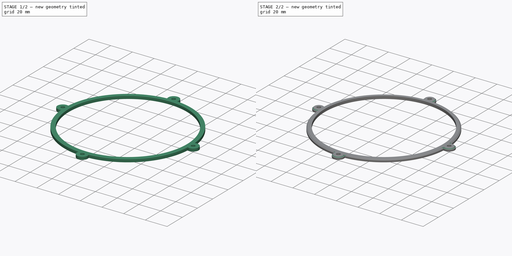
[diagram: build sequence overview — one tinted view per stage of 2, left to right]
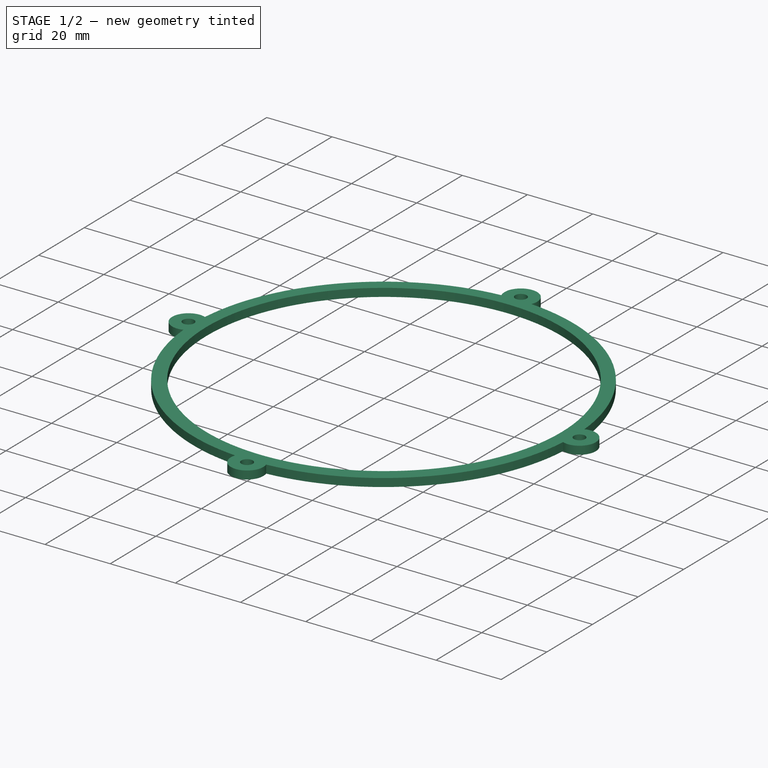
[diagram: stage 1 of 2 — iso view after this stage's code; geometry added in this stage tinted green]
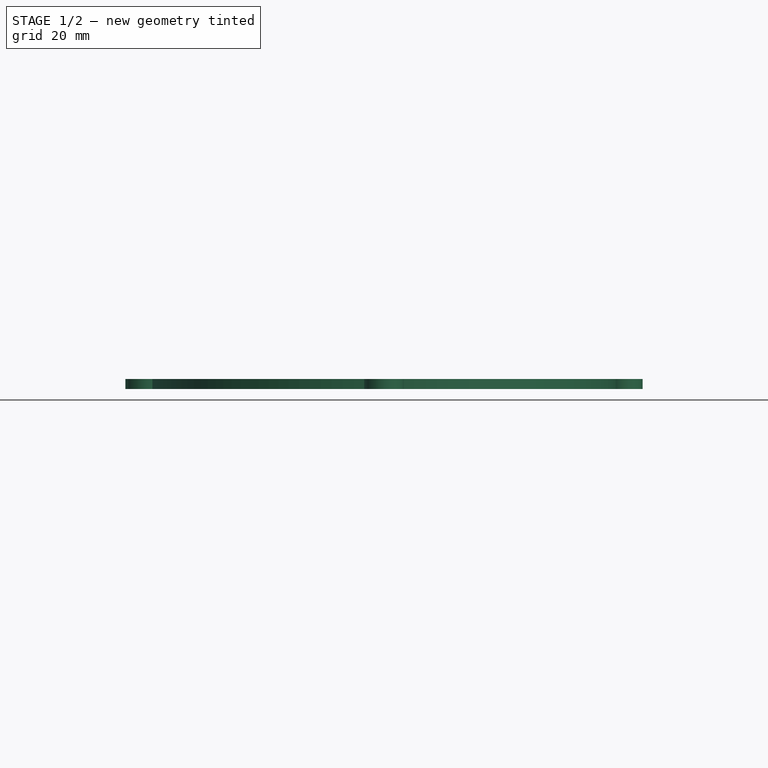
[diagram: stage 1 of 2 — front view after this stage's code; geometry added in this stage tinted green]
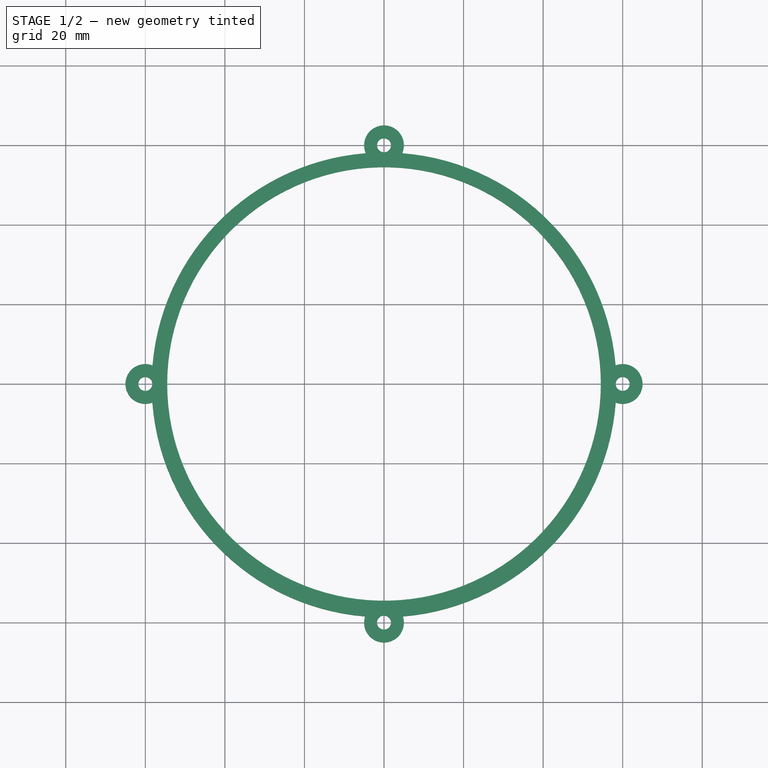
[diagram: stage 1 of 2 — top view after this stage's code; geometry added in this stage tinted green]
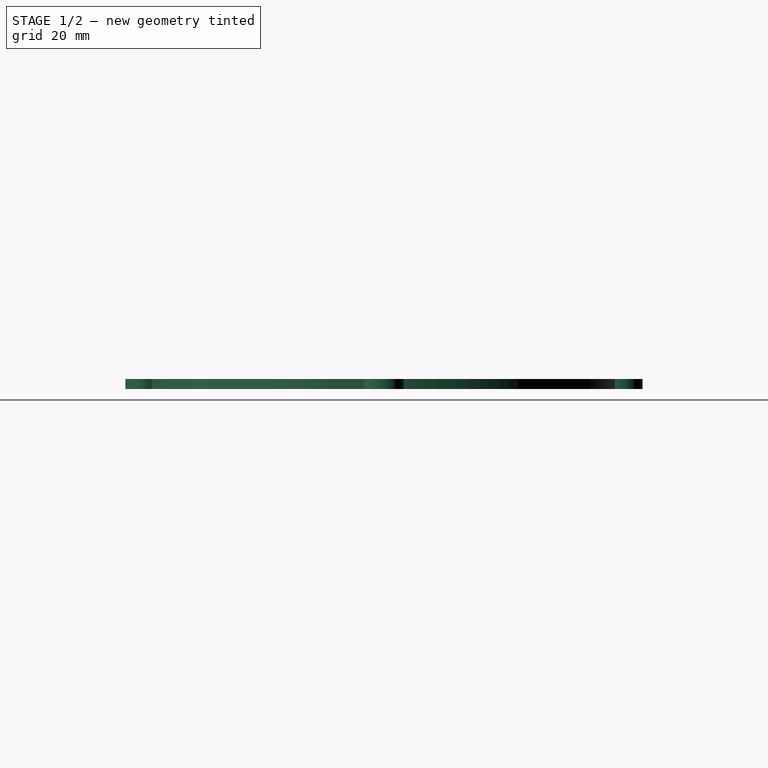
[diagram: stage 1 of 2 — right view after this stage's code; geometry added in this stage tinted green]
FCSTD DOCUMENT  (FreeCAD 0.19R24276 (Git))
Label: Filter_ring
License: All rights reserved
LicenseURL: http://en.wikipedia.org/wiki/All_rights_reserved
objects: Sketcher::SketchObject×1, PartDesign::Pad×1, PartDesign::Chamfer×1, PartDesign::Body×1
note: 6 computed .brp shape members not serialized (recipe doc carries the construction recipe); baked Part::Feature solids carry a one-line shape summary decoded from their .brp

FEATURE [Sketcher::SketchObject] Sketch
  FullyConstrained = false
  MapMode = 5
  Support = -> [XY_Plane]
  sketch-geometry (18):
    g0: Circle CenterX=0 CenterY=0 CenterZ=0 NormalX=0 NormalY=0 NormalZ=1 AngleXU=0 Radius=54.5
    g1: LineSegment StartX=0 StartY=0 StartZ=0 EndX=0 EndY=60 EndZ=0
    g2: ArcOfCircle CenterX=0 CenterY=60 CenterZ=0 NormalX=0 NormalY=0 NormalZ=1 AngleXU=0 Radius=5 StartAngle=5.87256 EndAngle=9.83573
    g3: Circle CenterX=0 CenterY=60 CenterZ=0 NormalX=0 NormalY=0 NormalZ=1 AngleXU=0 Radius=0
    g4: Circle CenterX=0 CenterY=60 CenterZ=0 NormalX=0 NormalY=0 NormalZ=1 AngleXU=0 Radius=1.75
    g5: LineSegment StartX=0 StartY=0 StartZ=0 EndX=0 EndY=-60 EndZ=0
    g6: ArcOfCircle CenterX=0 CenterY=-60 CenterZ=0 NormalX=0 NormalY=0 NormalZ=1 AngleXU=0 Radius=5 StartAngle=2.82822 EndAngle=6.59623
    g7: Circle CenterX=0 CenterY=-60 CenterZ=0 NormalX=0 NormalY=0 NormalZ=1 AngleXU=0 Radius=1.75
    g8: LineSegment StartX=0 StartY=0 StartZ=0 EndX=60 EndY=0 EndZ=0
    g9: LineSegment StartX=0 StartY=0 StartZ=0 EndX=-60 EndY=0 EndZ=0
    g10: ArcOfCircle CenterX=60 CenterY=0 CenterZ=0 NormalX=0 NormalY=0 NormalZ=1 AngleXU=0 Radius=5 StartAngle=4.35661 EndAngle=8.21759
    g11: ArcOfCircle CenterX=-60 CenterY=0 CenterZ=0 NormalX=0 NormalY=0 NormalZ=1 AngleXU=0 Radius=5 StartAngle=1.2031 EndAngle=5.07226
    g12: Circle CenterX=-60 CenterY=0 CenterZ=0 NormalX=0 NormalY=0 NormalZ=1 AngleXU=0 Radius=1.75
    g13: Circle CenterX=60 CenterY=0 CenterZ=0 NormalX=0 NormalY=0 NormalZ=1 AngleXU=0 Radius=1.75
    g14: ArcOfCircle CenterX=0.00985268 CenterY=-0.234975 CenterZ=0 NormalX=0 NormalY=0 NormalZ=1 AngleXU=0 Radius=58.4184 StartAngle=3.21775 EndAngle=4.63071
    g15: ArcOfCircle CenterX=0.00985268 CenterY=-0.234975 CenterZ=0 NormalX=0 NormalY=0 NormalZ=1 AngleXU=0 Radius=58.4184 StartAngle=1.64951 EndAngle=3.0576
    g16: ArcOfCircle CenterX=0.00985268 CenterY=-0.234975 CenterZ=0 NormalX=0 NormalY=0 NormalZ=1 AngleXU=0 Radius=58.4184 StartAngle=0.0841149 EndAngle=1.49241
    g17: ArcOfCircle CenterX=0.00985268 CenterY=-0.234975 CenterZ=0 NormalX=0 NormalY=0 NormalZ=1 AngleXU=0 Radius=58.4184 StartAngle=4.79374 EndAngle=6.2069
  constraints (48):
    c: Coincident(g0,g-1)
    c: Diameter(g0) = 109
    c: Coincident(g1,g0)
    c: PointOnObject(g1,g-2)
    c: DistanceY(g1,g1) = 60
    c: Coincident(g2,g1)
    c: Diameter(g2) = 10
    c: Coincident(g3,g1)
    c: Tangent(g3,g-2)
    c: Coincident(g4,g1)
    c: Diameter(g4) = 3.5
    c: Coincident(g5,g0)
    c: PointOnObject(g5,g-2)
    c: DistanceY(g5,g5) = 60
    c: Coincident(g6,g5)
    c: Coincident(g7,g5)
    c: Equal(g2,g6)
    c: Equal(g7,g4)
    c: Coincident(g8,g0)
    c: PointOnObject(g8,g-1)
    c: Coincident(g9,g0)
    c: PointOnObject(g9,g-1)
    c: DistanceX(g8,g8) = 60
    c: DistanceX(g9,g9) = 60
    c: Coincident(g10,g8)
    c: Coincident(g11,g9)
    c: Coincident(g12,g9)
    c: Coincident(g13,g8)
    c: Diameter(g10) = 10
    c: Diameter(g11) = 10
    c: Diameter(g12) = 3.5
    c: Equal(g12,g13)
    c: Coincident(g15,g11)
    c: PointOnObject(g2,g14)
    c: Equal(g14,g15)
    c: Coincident(g14,g15)
    c: Coincident(g2,g16)
    c: PointOnObject(g15,g2)
    c: Equal(g14,g16)
    c: Coincident(g16,g10)
    c: Coincident(g14,g16)
    c: Coincident(g17,g10)
    c: PointOnObject(g6,g14)
    c: Equal(g14,g17)
    c: PointOnObject(g17,g6)
    c: Coincident(g14,g17)
    c: Coincident(g14,g6)
    c: Coincident(g14,g11)
FEATURE [PartDesign::Pad] Pad
  Direction = (1,1,1)
  Length = 2.5
  Length2 = 100
  Profile = -> Sketch
  Type = 0
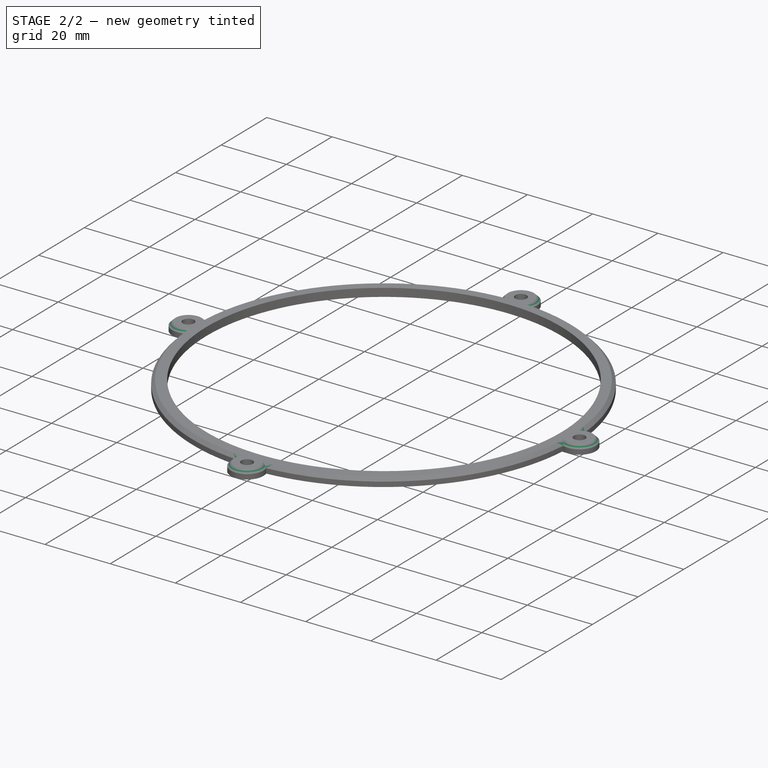
[diagram: stage 2 of 2 — iso view after this stage's code; geometry added in this stage tinted green]
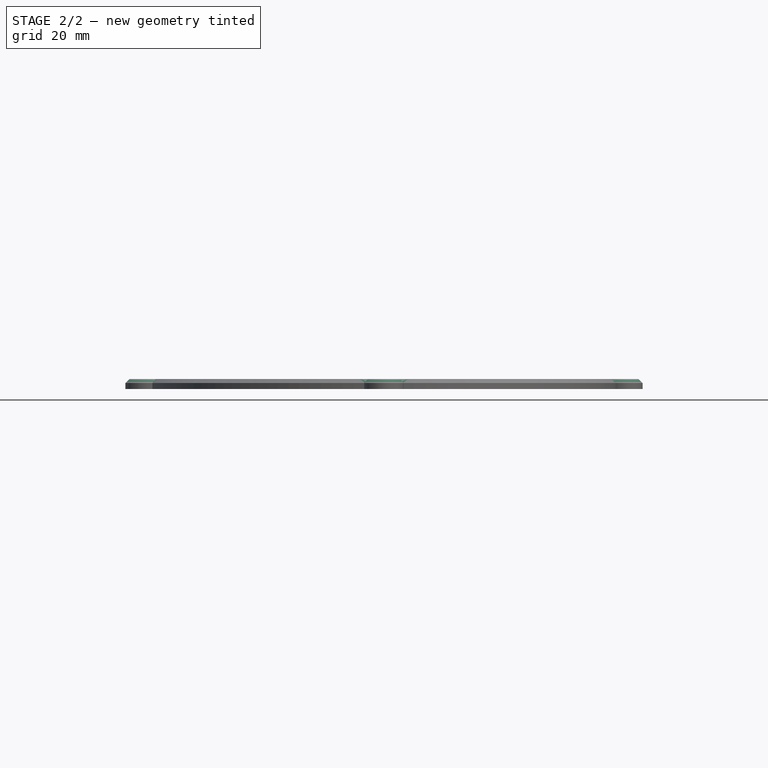
[diagram: stage 2 of 2 — front view after this stage's code; geometry added in this stage tinted green]
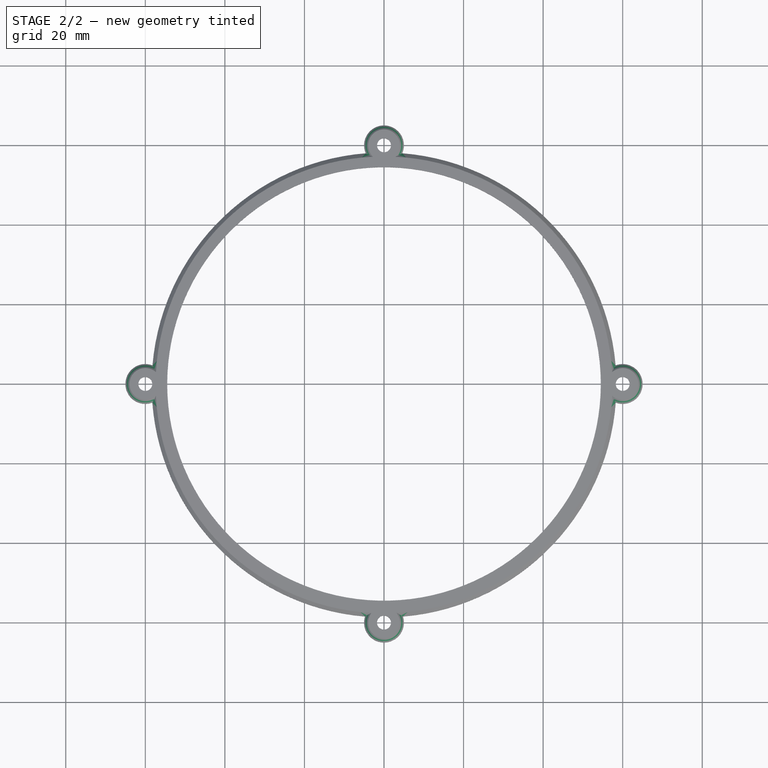
[diagram: stage 2 of 2 — top view after this stage's code; geometry added in this stage tinted green]
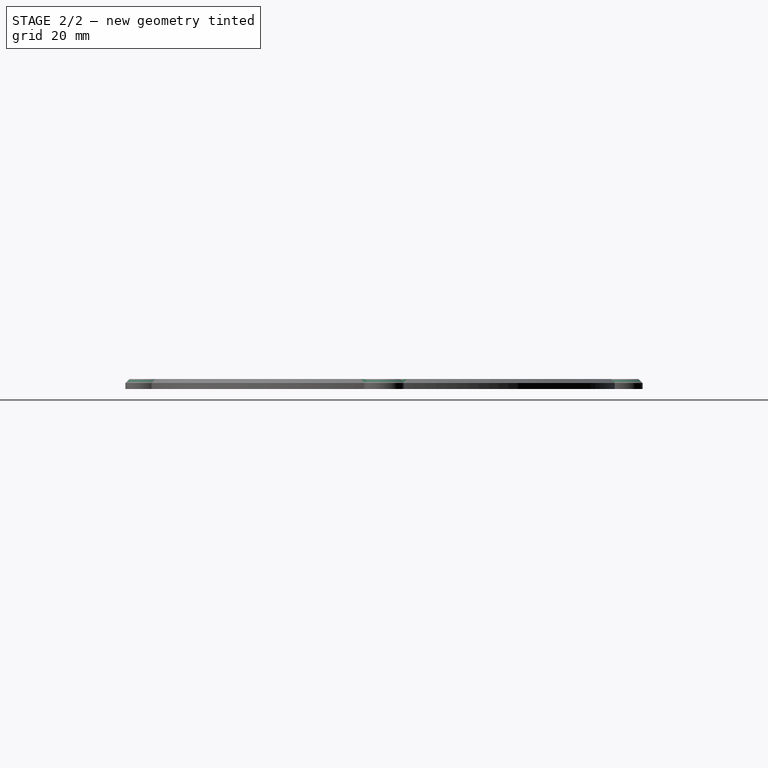
[diagram: stage 2 of 2 — right view after this stage's code; geometry added in this stage tinted green]
FEATURE [PartDesign::Chamfer] Chamfer
  Angle = 45
  Base = -> Pad [Edge19,Edge16,Edge13,Edge10,Edge7,Edge22,Edge24,Edge4]
  BaseFeature = -> Pad
  ChamferType = 0
  FlipDirection = false
  Size = 1
  Size2 = 1
  SupportTransform = false
FEATURE [PartDesign::Body] Body
  Group = -> [Sketch,Pad,Chamfer]
  Origin = -> Origin
  Tip = -> Chamfer
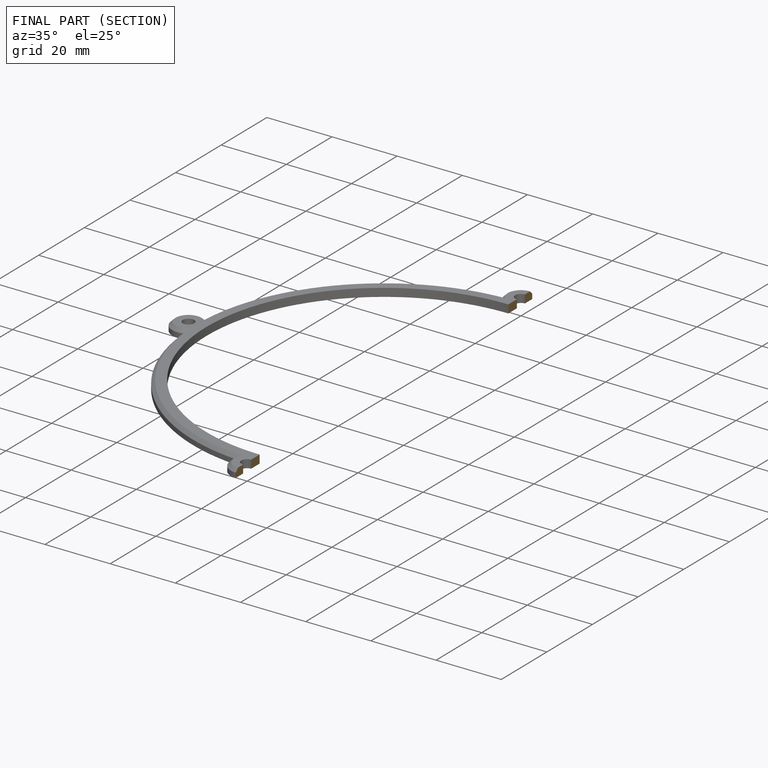
[diagram: finished part — half-section view (interior)]
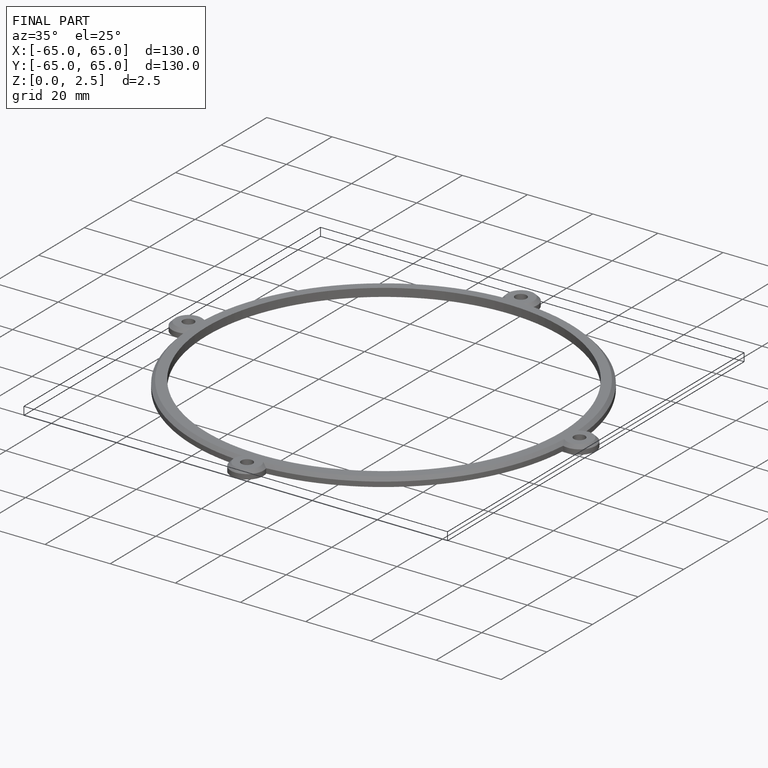
[diagram: finished part — iso view with bounding-box wireframe]
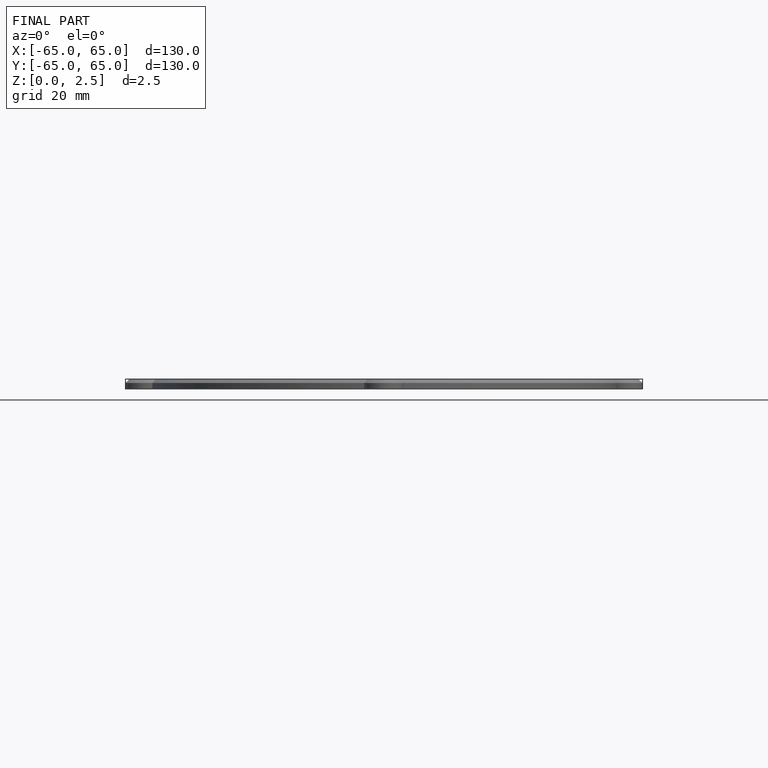
[diagram: finished part — front view with bounding-box wireframe]
